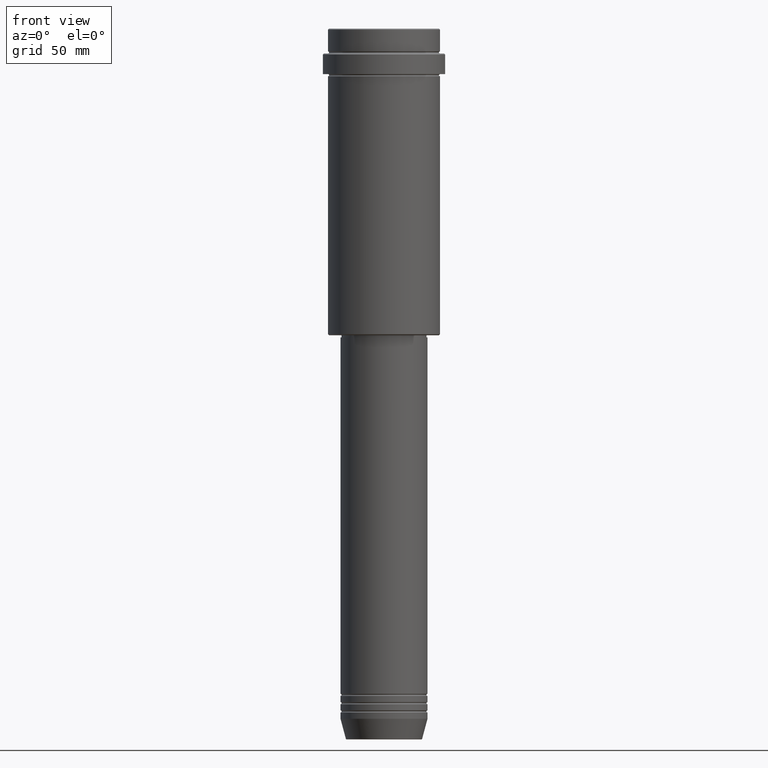
[diagram: clean part render]
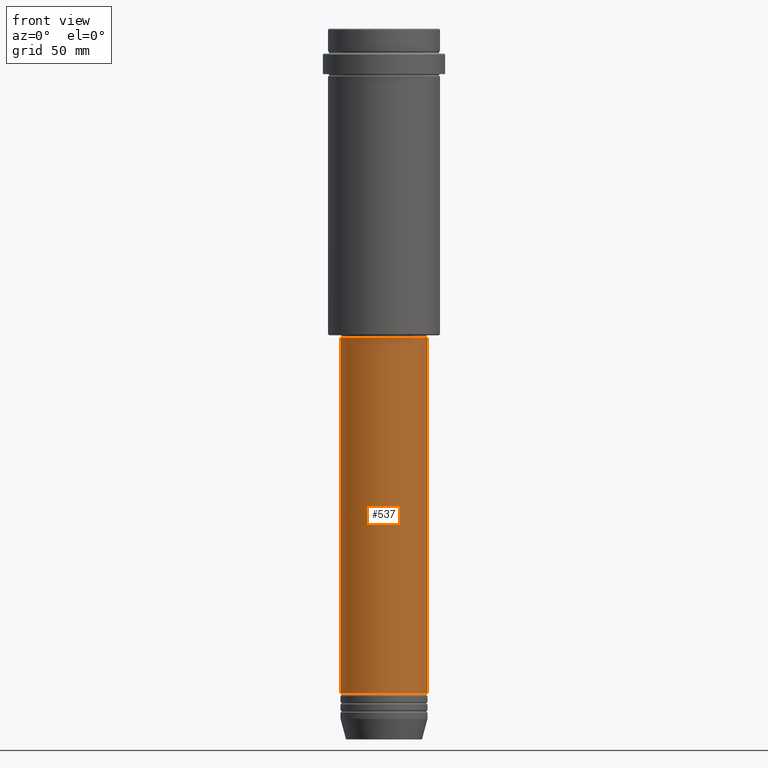
[diagram: same view with one face highlighted and labeled with its STEP entity id]
A machine part, front view. The second image highlights one B-rep face of the part: STEP entity #537.
In plain terms, the highlighted cylindrical surface (partial cylindrical patch) has radius 21 mm, axis along (-0, -0, 1).
Its self-contained STEP definition (entity closure, byte-faithful):
#60 = CIRCLE ( 'NONE', #1147, 21.00000000000000000 ) ;
#139 = EDGE_CURVE ( 'NONE', #1301, #1172, #60, .T. ) ;
#163 = CARTESIAN_POINT ( 'NONE',  ( 21.00000000000000000, 0.000000000000000000, -148.9999999999999432 ) ) ;
#165 = DIRECTION ( 'NONE',  ( -0.000000000000000000, -0.000000000000000000, 1.000000000000000000 ) ) ;
#254 = VECTOR ( 'NONE', #603, 1000.000000000000000 ) ;
#260 = EDGE_CURVE ( 'NONE', #1301, #1146, #926, .T. ) ;
#309 = DIRECTION ( 'NONE',  ( 1.000000000000000000, 0.000000000000000000, 0.000000000000000000 ) ) ;
#361 = LINE ( 'NONE', #392, #974 ) ;
#376 = CIRCLE ( 'NONE', #549, 21.00000000000000000 ) ;
#392 = CARTESIAN_POINT ( 'NONE',  ( 21.00000000000000000, 0.000000000000000000, 0.000000000000000000 ) ) ;
#443 = CARTESIAN_POINT ( 'NONE',  ( 21.00000000000000000, 0.000000000000000000, -320.9999999999998863 ) ) ;
#483 = DIRECTION ( 'NONE',  ( -0.000000000000000000, -0.000000000000000000, 1.000000000000000000 ) ) ;
#532 = DIRECTION ( 'NONE',  ( 1.000000000000000000, 0.000000000000000000, 0.000000000000000000 ) ) ;
#537 = ADVANCED_FACE ( 'NONE', ( #1275 ), #1176, .T. ) ;
#549 = AXIS2_PLACEMENT_3D ( 'NONE', #698, #165, #1257 ) ;
#555 = DIRECTION ( 'NONE',  ( -0.000000000000000000, -0.000000000000000000, 1.000000000000000000 ) ) ;
#575 = EDGE_LOOP ( 'NONE', ( #1119, #1292, #718, #851 ) ) ;
#603 = DIRECTION ( 'NONE',  ( -0.000000000000000000, -0.000000000000000000, 1.000000000000000000 ) ) ;
#638 = CARTESIAN_POINT ( 'NONE',  ( 0.000000000000000000, 0.000000000000000000, 0.000000000000000000 ) ) ;
#665 = CARTESIAN_POINT ( 'NONE',  ( 0.000000000000000000, 0.000000000000000000, -320.9999999999998863 ) ) ;
#698 = CARTESIAN_POINT ( 'NONE',  ( 0.000000000000000000, 0.000000000000000000, -148.9999999999999432 ) ) ;
#718 = ORIENTED_EDGE ( 'NONE', *, *, #1216, .T. ) ;
#758 = VERTEX_POINT ( 'NONE', #163 ) ;
#761 = AXIS2_PLACEMENT_3D ( 'NONE', #638, #1090, #532 ) ;
#851 = ORIENTED_EDGE ( 'NONE', *, *, #1244, .F. ) ;
#926 = LINE ( 'NONE', #1256, #254 ) ;
#974 = VECTOR ( 'NONE', #483, 1000.000000000000000 ) ;
#1090 = DIRECTION ( 'NONE',  ( -0.000000000000000000, -0.000000000000000000, 1.000000000000000000 ) ) ;
#1119 = ORIENTED_EDGE ( 'NONE', *, *, #260, .F. ) ;
#1146 = VERTEX_POINT ( 'NONE', #1343 ) ;
#1147 = AXIS2_PLACEMENT_3D ( 'NONE', #665, #555, #309 ) ;
#1172 = VERTEX_POINT ( 'NONE', #443 ) ;
#1176 = CYLINDRICAL_SURFACE ( 'NONE', #761, 21.00000000000000000 ) ;
#1216 = EDGE_CURVE ( 'NONE', #1172, #758, #361, .T. ) ;
#1244 = EDGE_CURVE ( 'NONE', #1146, #758, #376, .T. ) ;
#1256 = CARTESIAN_POINT ( 'NONE',  ( -21.00000000000000000, 2.571758278209441661E-15, 0.000000000000000000 ) ) ;
#1257 = DIRECTION ( 'NONE',  ( 1.000000000000000000, 0.000000000000000000, 0.000000000000000000 ) ) ;
#1275 = FACE_OUTER_BOUND ( 'NONE', #575, .T. ) ;
#1292 = ORIENTED_EDGE ( 'NONE', *, *, #139, .T. ) ;
#1301 = VERTEX_POINT ( 'NONE', #1368 ) ;
#1343 = CARTESIAN_POINT ( 'NONE',  ( -21.00000000000000000, 2.571758278209441661E-15, -148.9999999999999432 ) ) ;
#1368 = CARTESIAN_POINT ( 'NONE',  ( -21.00000000000000000, 2.571758278209441661E-15, -320.9999999999998863 ) ) ;